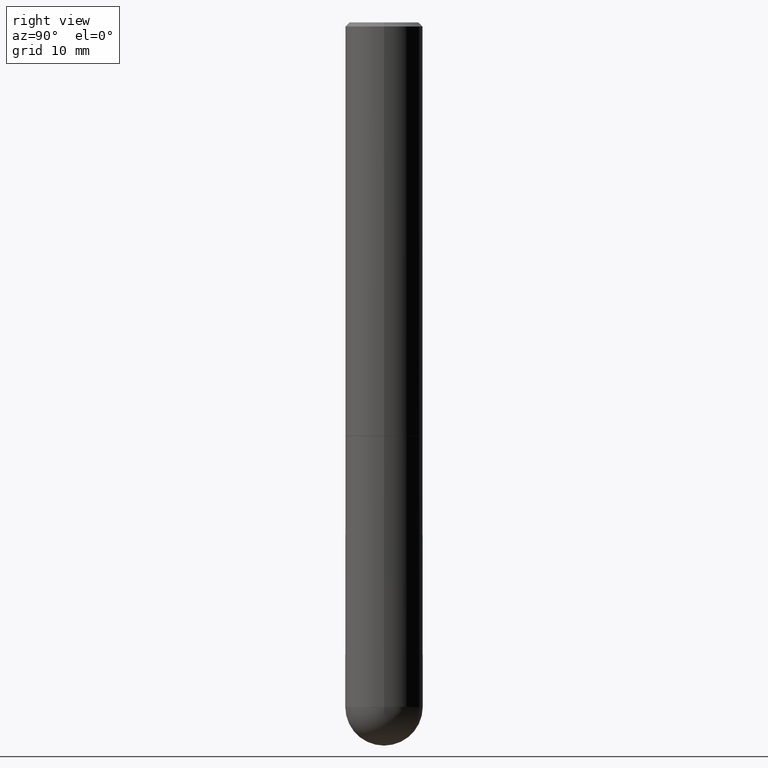
[diagram: clean part render]
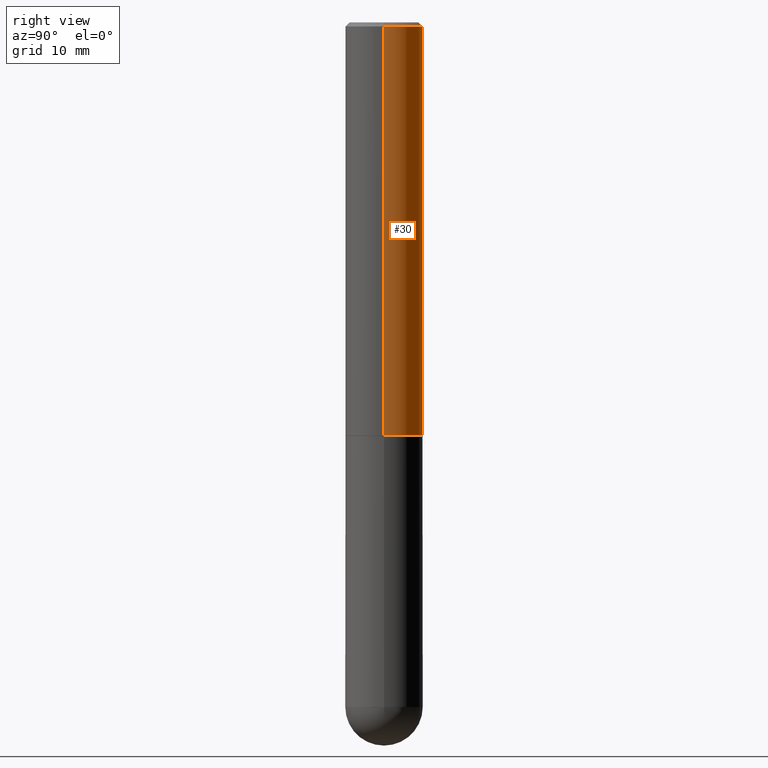
[diagram: same view with one face highlighted and labeled with its STEP entity id]
A machine part, right view. The second image highlights one B-rep face of the part: STEP entity #30.
In plain terms, the highlighted cylindrical surface (partial cylindrical patch) has radius 4.7625 mm, axis along (-0, 0, 1).
Its self-contained STEP definition (entity closure, byte-faithful):
#1 = DIRECTION ( 'NONE',  ( -2.445468806185136877E-29, 3.491481338843145188E-15, 1.000000000000000000 ) ) ;
#9 = DIRECTION ( 'NONE',  ( -2.445468806185136877E-29, 3.491481338843145188E-15, 1.000000000000000000 ) ) ;
#30 = ADVANCED_FACE ( 'NONE', ( #380 ), #262, .T. ) ;
#35 = ORIENTED_EDGE ( 'NONE', *, *, #226, .F. ) ;
#40 = CARTESIAN_POINT ( 'NONE',  ( -0.1874999999999999722, 1.239475875289311710E-15, -0.02000000000000003858 ) ) ;
#50 = DIRECTION ( 'NONE',  ( 1.000000000000000000, -6.982962677686266711E-15, 4.876176775795935793E-29 ) ) ;
#52 = VERTEX_POINT ( 'NONE', #274 ) ;
#63 = CARTESIAN_POINT ( 'NONE',  ( 0.1875000000000001110, -1.309305502066175797E-15, 9.142831454617385217E-30 ) ) ;
#70 = CARTESIAN_POINT ( 'NONE',  ( 4.888492143564087030E-29, -6.979471196347446580E-15, -1.998999999999999666 ) ) ;
#72 = CARTESIAN_POINT ( 'NONE',  ( 0.1874999999999999722, -1.356173001359025269E-15, -0.02000000000000003858 ) ) ;
#84 = VERTEX_POINT ( 'NONE', #284 ) ;
#87 = AXIS2_PLACEMENT_3D ( 'NONE', #364, #219, #148 ) ;
#106 = CARTESIAN_POINT ( 'NONE',  ( 0.000000000000000000, 0.000000000000000000, 0.000000000000000000 ) ) ;
#125 = DIRECTION ( 'NONE',  ( -2.445468806185136597E-29, 3.491481338843145583E-15, 1.000000000000000000 ) ) ;
#136 = AXIS2_PLACEMENT_3D ( 'NONE', #70, #125, #370 ) ;
#143 = LINE ( 'NONE', #387, #314 ) ;
#146 = DIRECTION ( 'NONE',  ( -2.445468806185136597E-29, 3.491481338843145583E-15, 1.000000000000000000 ) ) ;
#148 = DIRECTION ( 'NONE',  ( 1.000000000000000000, -6.982962677686266711E-15, 0.000000000000000000 ) ) ;
#156 = EDGE_CURVE ( 'NONE', #52, #318, #295, .T. ) ;
#158 = ORIENTED_EDGE ( 'NONE', *, *, #197, .T. ) ;
#177 = ORIENTED_EDGE ( 'NONE', *, *, #302, .T. ) ;
#196 = CIRCLE ( 'NONE', #87, 0.1874999999999999722 ) ;
#197 = EDGE_CURVE ( 'NONE', #52, #84, #256, .T. ) ;
#219 = DIRECTION ( 'NONE',  ( -2.445468806185136597E-29, 3.491481338843145583E-15, 1.000000000000000000 ) ) ;
#226 = EDGE_CURVE ( 'NONE', #318, #236, #196, .T. ) ;
#236 = VERTEX_POINT ( 'NONE', #40 ) ;
#246 = AXIS2_PLACEMENT_3D ( 'NONE', #106, #146, #50 ) ;
#256 = CIRCLE ( 'NONE', #136, 0.1875000000000002776 ) ;
#262 = CYLINDRICAL_SURFACE ( 'NONE', #246, 0.1875000000000001110 ) ;
#274 = CARTESIAN_POINT ( 'NONE',  ( 0.1875000000000002776, -8.288776698413623955E-15, -1.998999999999999666 ) ) ;
#284 = CARTESIAN_POINT ( 'NONE',  ( -0.1875000000000002776, -2.192382782011961963E-15, -1.998999999999999666 ) ) ;
#295 = LINE ( 'NONE', #63, #382 ) ;
#302 = EDGE_CURVE ( 'NONE', #84, #236, #143, .T. ) ;
#313 = ORIENTED_EDGE ( 'NONE', *, *, #156, .F. ) ;
#314 = VECTOR ( 'NONE', #9, 39.37007874015748143 ) ;
#318 = VERTEX_POINT ( 'NONE', #72 ) ;
#345 = EDGE_LOOP ( 'NONE', ( #158, #177, #35, #313 ) ) ;
#364 = CARTESIAN_POINT ( 'NONE',  ( 4.890937612370282792E-31, -6.982962677686303935E-17, -0.02000000000000003858 ) ) ;
#370 = DIRECTION ( 'NONE',  ( 1.000000000000000000, -6.982962677686268288E-15, 0.000000000000000000 ) ) ;
#380 = FACE_OUTER_BOUND ( 'NONE', #345, .T. ) ;
#382 = VECTOR ( 'NONE', #1, 39.37007874015748143 ) ;
#387 = CARTESIAN_POINT ( 'NONE',  ( -0.1875000000000001110, 1.332267629550188637E-15, -9.223003294227953596E-30 ) ) ;